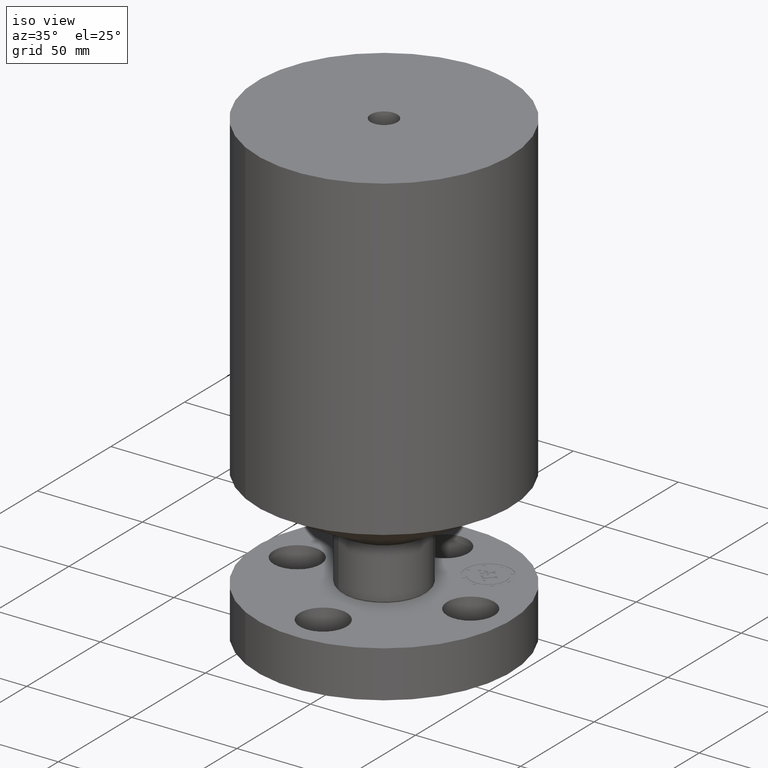
[diagram: clean part render]
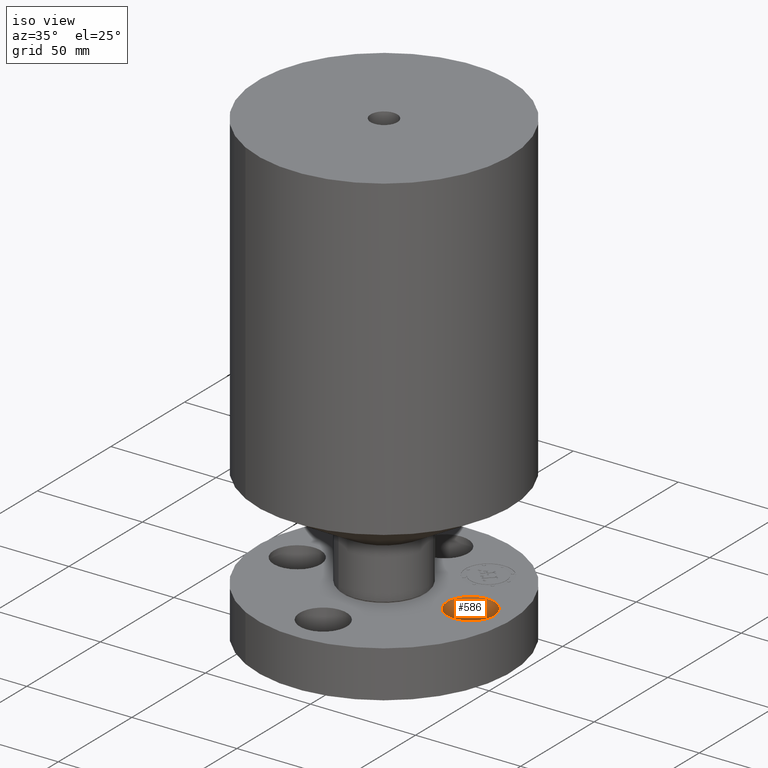
[diagram: same view with one face highlighted and labeled with its STEP entity id]
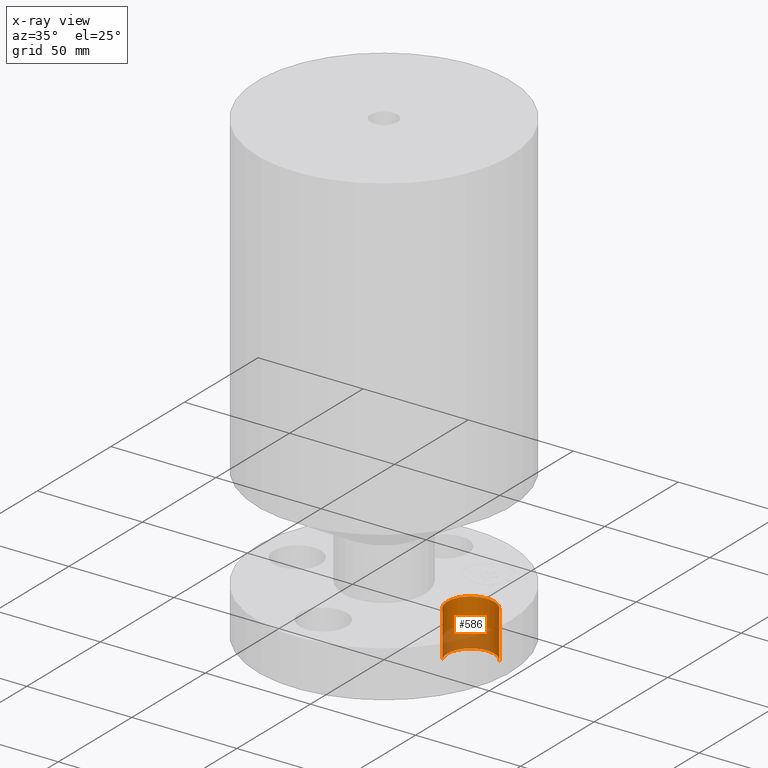
[diagram: x-ray of the same camera — body ghosted, the highlighted face saturated]
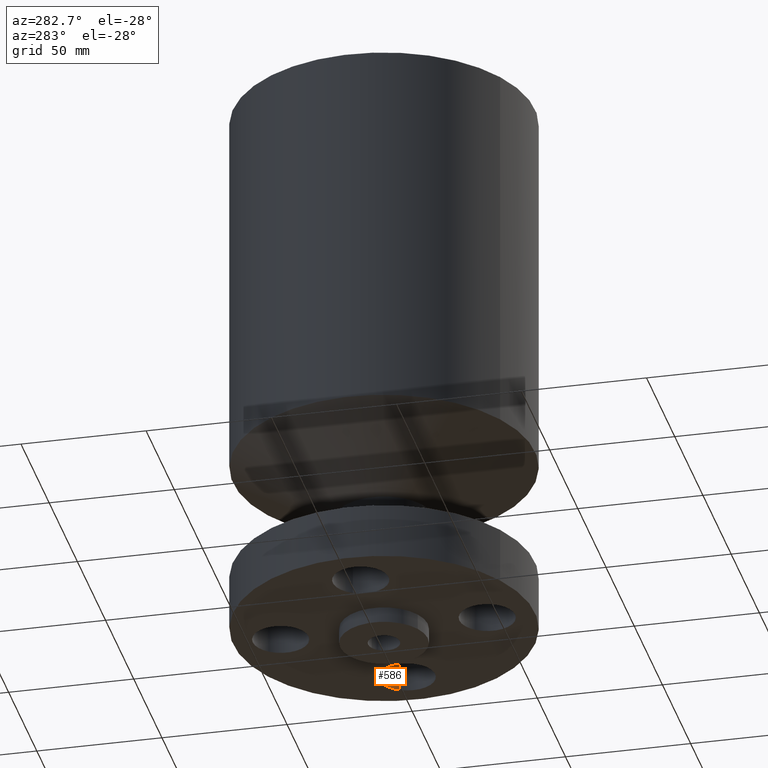
[diagram: same view with one face highlighted and labeled with its STEP entity id]
A machine part, iso view. The second image highlights one B-rep face of the part: STEP entity #586.
The next image is the same camera in x-ray: the body ghosted, the highlighted face saturated — about 38% of this face is hidden behind the body in this view.
A second angle (auxiliary view) of the same face is appended — the face is thin or edge-on in the first view.
In plain terms, the highlighted cylindrical surface (edge-blend (fillet) strip) has radius 11.176 mm, axis along (0, -0, 1).
Its self-contained STEP definition (entity closure, byte-faithful):
#38=AXIS2_PLACEMENT_3D('Cylinder Axis2P3D',#35,#36,#37) ;
#100=AXIS2_PLACEMENT_3D('Circle Axis2P3D',#98,#99,$) ;
#577=AXIS2_PLACEMENT_3D('Circle Axis2P3D',#575,#576,$) ;
#35=CARTESIAN_POINT('Axis2P3D Location',(1.62500000001,0.,0.00393700787402)) ;
#40=CARTESIAN_POINT('Line Origine',(2.01113632724,0.210947236987,0.440000000002)) ;
#44=CARTESIAN_POINT('Vertex',(2.01113632724,0.210947236987,0.880000000004)) ;
#46=CARTESIAN_POINT('Vertex',(2.01113632724,0.210947236987,2.2401153548E-016)) ;
#53=CARTESIAN_POINT('Vertex',(1.23886367277,-0.210947236987,2.2401153548E-016)) ;
#56=CARTESIAN_POINT('Line Origine',(1.23886367277,-0.210947236987,0.440000000002)) ;
#60=CARTESIAN_POINT('Vertex',(1.23886367277,-0.210947236987,0.880000000004)) ;
#98=CARTESIAN_POINT('Axis2P3D Location',(1.62500000001,1.39870617276E-016,0.)) ;
#575=CARTESIAN_POINT('Axis2P3D Location',(1.62500000001,0.,0.880000000004)) ;
#36=DIRECTION('Axis2P3D Direction',(0.,-0.,0.0393700787402)) ;
#37=DIRECTION('Axis2P3D XDirection',(0.0345504945626,0.0188750212049,0.)) ;
#41=DIRECTION('Vector Direction',(0.,0.,0.0393700787402)) ;
#57=DIRECTION('Vector Direction',(0.,0.,0.0393700787402)) ;
#99=DIRECTION('Axis2P3D Direction',(0.,0.,-0.0393700787402)) ;
#576=DIRECTION('Axis2P3D Direction',(0.,-0.,0.0393700787402)) ;
#42=VECTOR('Line Direction',#41,0.0393700787402) ;
#58=VECTOR('Line Direction',#57,0.0393700787402) ;
#581=ORIENTED_EDGE('',*,*,#62,.T.) ;
#582=ORIENTED_EDGE('',*,*,#102,.T.) ;
#583=ORIENTED_EDGE('',*,*,#48,.F.) ;
#584=ORIENTED_EDGE('',*,*,#579,.F.) ;
#586=ADVANCED_FACE('PartBody',(#585),#39,.F.) ;
#101=CIRCLE('generated circle',#100,0.440000000002) ;
#578=CIRCLE('generated circle',#577,0.440000000002) ;
#39=CYLINDRICAL_SURFACE('generated cylinder',#38,0.440000000002) ;
#48=EDGE_CURVE('',#45,#47,#43,.F.) ;
#62=EDGE_CURVE('',#61,#54,#59,.F.) ;
#102=EDGE_CURVE('',#54,#47,#101,.T.) ;
#579=EDGE_CURVE('',#61,#45,#578,.F.) ;
#580=EDGE_LOOP('',(#581,#582,#583,#584)) ;
#585=FACE_OUTER_BOUND('',#580,.T.) ;
#43=LINE('Line',#40,#42) ;
#59=LINE('Line',#56,#58) ;
#45=VERTEX_POINT('',#44) ;
#47=VERTEX_POINT('',#46) ;
#54=VERTEX_POINT('',#53) ;
#61=VERTEX_POINT('',#60) ;